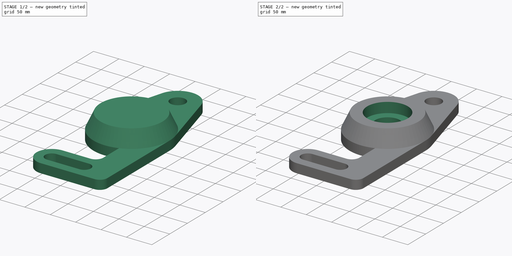
[diagram: build sequence overview — one tinted view per stage of 2, left to right]
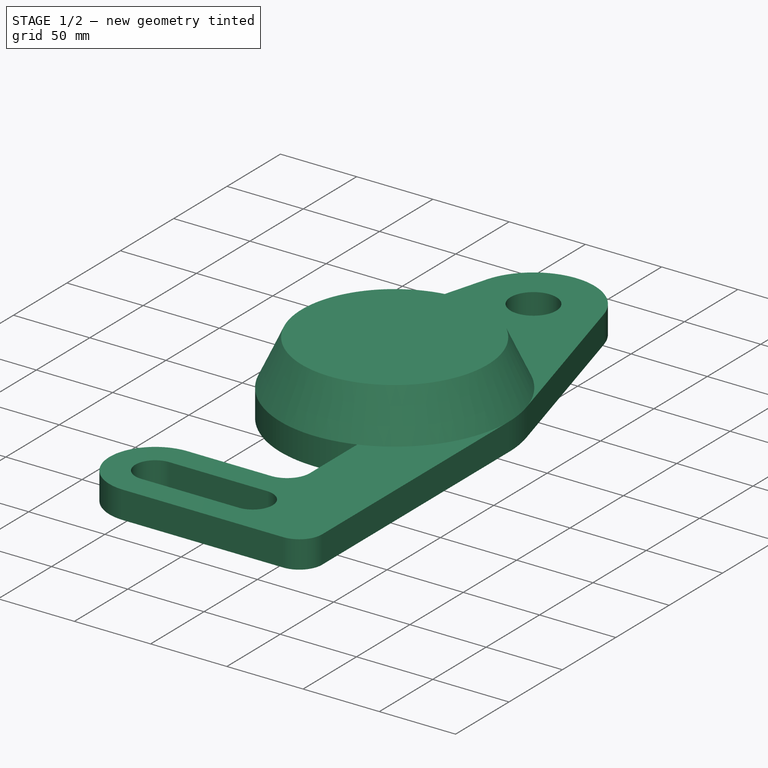
[diagram: stage 1 of 2 — iso view after this stage's code; geometry added in this stage tinted green]
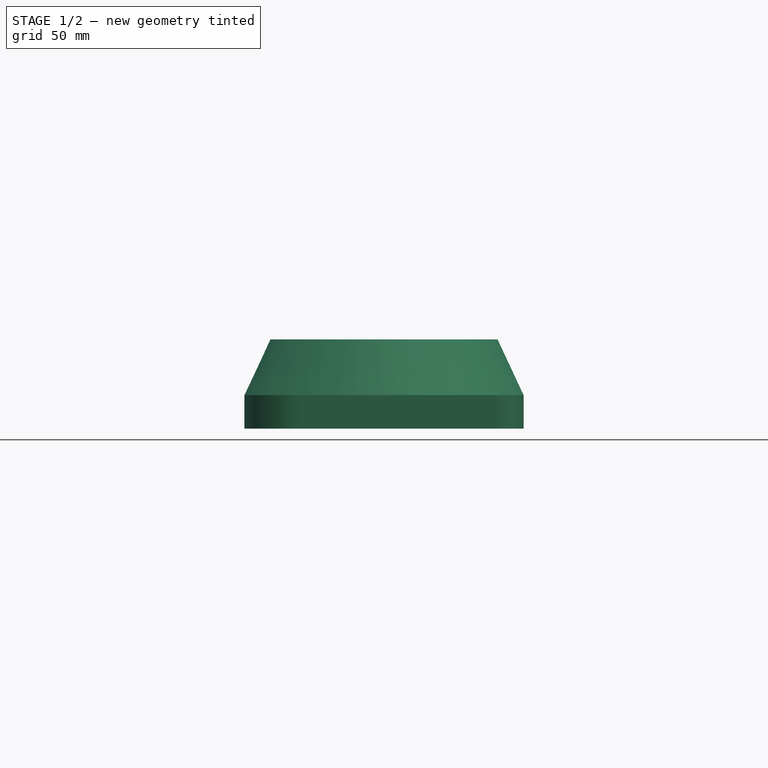
[diagram: stage 1 of 2 — front view after this stage's code; geometry added in this stage tinted green]
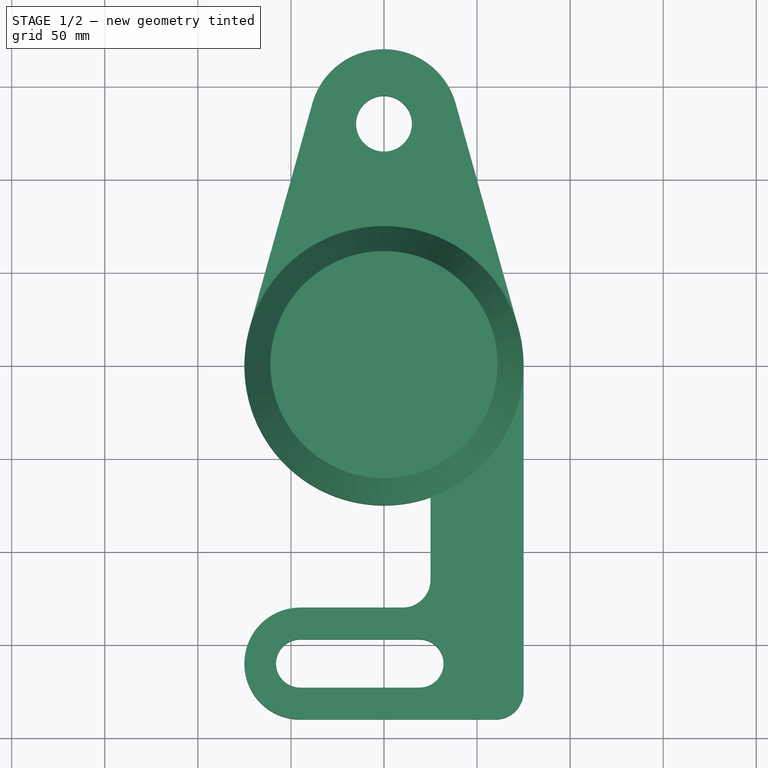
[diagram: stage 1 of 2 — top view after this stage's code; geometry added in this stage tinted green]
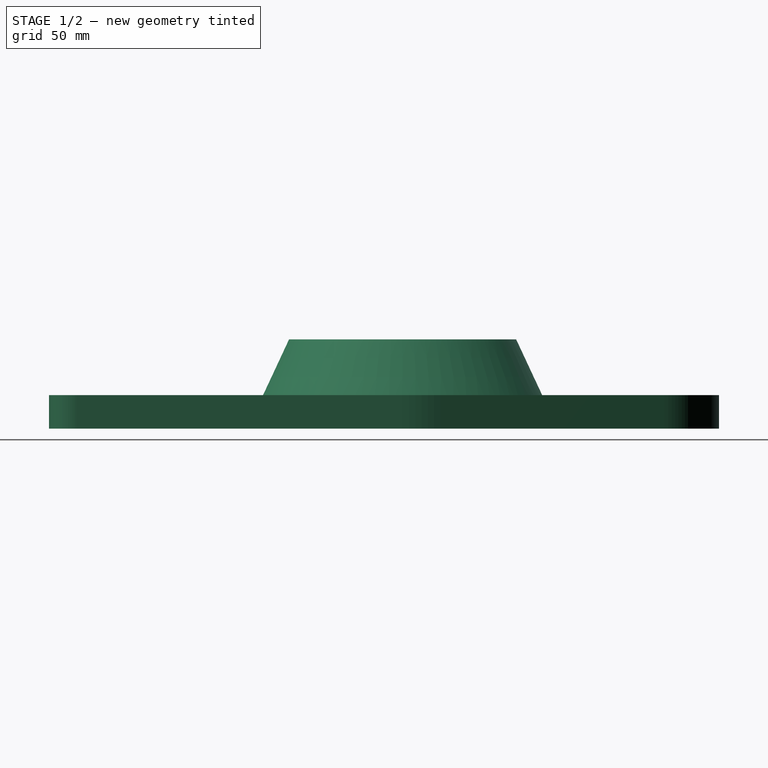
[diagram: stage 1 of 2 — right view after this stage's code; geometry added in this stage tinted green]
FCSTD DOCUMENT  (FreeCAD 0.22R36958 (Git))
Label: P - Link Practice Model
License: All rights reserved
LicenseURL: http://en.wikipedia.org/wiki/All_rights_reserved
objects: Sketcher::SketchObject×3, PartDesign::Pad×2, PartDesign::Pocket×2, PartDesign::Body×1
note: 12 computed .brp shape members not serialized (recipe doc carries the construction recipe); baked Part::Feature solids carry a one-line shape summary decoded from their .brp

FEATURE [Sketcher::SketchObject] Sketch
  AttachmentSupport = -> [XY_Plane]
  FullyConstrained = false
  MapMode = 5
  sketch-geometry (21):
    g0: Circle CenterX=0 CenterY=0 CenterZ=0 NormalX=0 NormalY=0 NormalZ=1 AngleXU=0 Radius=24
    g1: ArcOfCircle CenterX=0 CenterY=0 CenterZ=0 NormalX=0 NormalY=0 NormalZ=1 AngleXU=0 Radius=75 StartAngle=2.869 EndAngle=5.05223
    g2: LineSegment StartX=75 StartY=-6.66e-14 StartZ=0 EndX=75 EndY=-175 EndZ=0
    g3: LineSegment StartX=60 StartY=-190 StartZ=0 EndX=-45 EndY=-190 EndZ=0
    g4: LineSegment StartX=-45 StartY=-130 StartZ=0 EndX=10 EndY=-130 EndZ=0
    g5: LineSegment StartX=25 StartY=-115 StartZ=0 EndX=25 EndY=-70.7107 EndZ=0
    g6: ArcOfCircle CenterX=-45 CenterY=-160 CenterZ=0 NormalX=0 NormalY=0 NormalZ=1 AngleXU=0 Radius=30 StartAngle=1.5708 EndAngle=4.71239
    g7: ArcOfCircle CenterX=-45 CenterY=-160 CenterZ=0 NormalX=0 NormalY=0 NormalZ=1 AngleXU=0 Radius=13 StartAngle=1.5708 EndAngle=4.71239
    g8: ArcOfCircle CenterX=19 CenterY=-160 CenterZ=0 NormalX=0 NormalY=0 NormalZ=1 AngleXU=0 Radius=13 StartAngle=4.71239 EndAngle=7.85398
    g9: LineSegment StartX=-45 StartY=-147 StartZ=0 EndX=19 EndY=-147 EndZ=0
    g10: LineSegment StartX=-45 StartY=-173 StartZ=0 EndX=19 EndY=-173 EndZ=0
    g11: LineSegment StartX=-38.523 StartY=140.769 StartZ=0 EndX=-72.2307 EndY=20.1923 EndZ=0
    g12: LineSegment StartX=38.523 StartY=140.769 StartZ=0 EndX=72.2307 EndY=20.1923 EndZ=0
    g13: Circle CenterX=0 CenterY=130 CenterZ=0 NormalX=0 NormalY=0 NormalZ=1 AngleXU=0 Radius=15
    g14: ArcOfCircle CenterX=10 CenterY=-115 CenterZ=0 NormalX=0 NormalY=0 NormalZ=1 AngleXU=0 Radius=15 StartAngle=4.71239 EndAngle=6.28319
    g15: GeomPoint X=25 Y=-130 Z=0
    g16: ArcOfCircle CenterX=60 CenterY=-175 CenterZ=0 NormalX=0 NormalY=0 NormalZ=1 AngleXU=0 Radius=15 StartAngle=4.71239 EndAngle=6.28319
    g17: GeomPoint X=75 Y=-190 Z=0
    g18: ArcOfCircle CenterX=0 CenterY=130 CenterZ=0 NormalX=0 NormalY=0 NormalZ=1 AngleXU=0 Radius=40 StartAngle=0.272594 EndAngle=2.869
    g19: GeomPoint X=0 Y=170 Z=0
    g20: ArcOfCircle CenterX=0 CenterY=0 CenterZ=0 NormalX=0 NormalY=0 NormalZ=1 AngleXU=0 Radius=75 StartAngle=-9e-16 EndAngle=0.272594
  constraints (48):
    c: Coincident(g0,g-1)
    c: Coincident(g1,g0)
    c: Diameter(g0) = 48
    c: Diameter(g1) = 150
    c: Vertical(g2)
    c: Horizontal(g3)
    c: Horizontal(g9)
    c: Vertical(g7,g7)
    c: PointOnObject(g13,g-2)
    c: Diameter(g13) = 30
    c: Horizontal(g4)
    c: Vertical(g5)
    c: Distance(g2,g5) = 50
    c: Tangent(g9,g7) = 1.5708
    c: Tangent(g10,g7) = -1.5708
    c: Tangent(g10,g8) = -1.5708
    c: Tangent(g9,g8) = 1.5708
    c: Tangent(g6,g3) = 1.5708
    c: Tangent(g6,g4) = 1.5708
    c: DistanceY(g0,g13) = 130
    c: PointOnObject(g15,g4)
    c: PointOnObject(g15,g5)
    c: Tangent(g4,g14) = -1.5708
    c: Tangent(g5,g14) = -1.5708
    c: PointOnObject(g17,g2)
    c: PointOnObject(g17,g3)
    c: Tangent(g2,g16) = 1.5708
    c: Tangent(g3,g16) = 1.5708
    c: Radius(g14) = 15
    c: Radius(g18) = 40
    c: Coincident(g18,g13)
    c: Tangent(g18,g11) = -1.5708
    c: Tangent(g18,g12) = 1.5708
    c: Radius(g6) = 30
    c: Radius(g16) = 15
    c: Distance(g10,g9) = 26
    c: DistanceX(g7,g8) = 64
    c: Coincident(g7,g6)
    c: Distance(g6,g2) = 120
    c: PointOnObject(g19,g18)
    c: PointOnObject(g19,g-2)
    c: Distance(g-1,g3) = 190
    c: Coincident(g20,g12) = 1.5708
    c: Tangent(g1,g11) = -1.5708
    c: Equal(g1,g20)
    c: Coincident(g1,g5)
    c: Tangent(g20,g2) = 1.5708
    c: Coincident(g1,g20)
FEATURE [PartDesign::Pad] Pad
  Direction = (0,0,1)
  Length = 18
  Length2 = 10
  Profile = -> Sketch
  ReferenceAxis = -> Sketch [N_Axis]
  Suppressed = false
  Type = 0
FEATURE [Sketcher::SketchObject] Sketch001
  AttachmentSupport = -> [Pad]
  FullyConstrained = false
  MapMode = 5
  Placement = pos=(0,0,18) rot=(0,0,1;0rad)
  sketch-geometry (1):
    g0: Circle CenterX=0 CenterY=0 CenterZ=0 NormalX=0 NormalY=0 NormalZ=1 AngleXU=0 Radius=75
  constraints (1):
    c: Diameter(g0) = 150
FEATURE [PartDesign::Pad] Pad001
  BaseFeature = -> Pad
  Direction = (0,0,1)
  Length = 30
  Length2 = 10
  Profile = -> Sketch001
  ReferenceAxis = -> Sketch001 [N_Axis]
  Suppressed = false
  TaperAngle = -25
  Type = 0
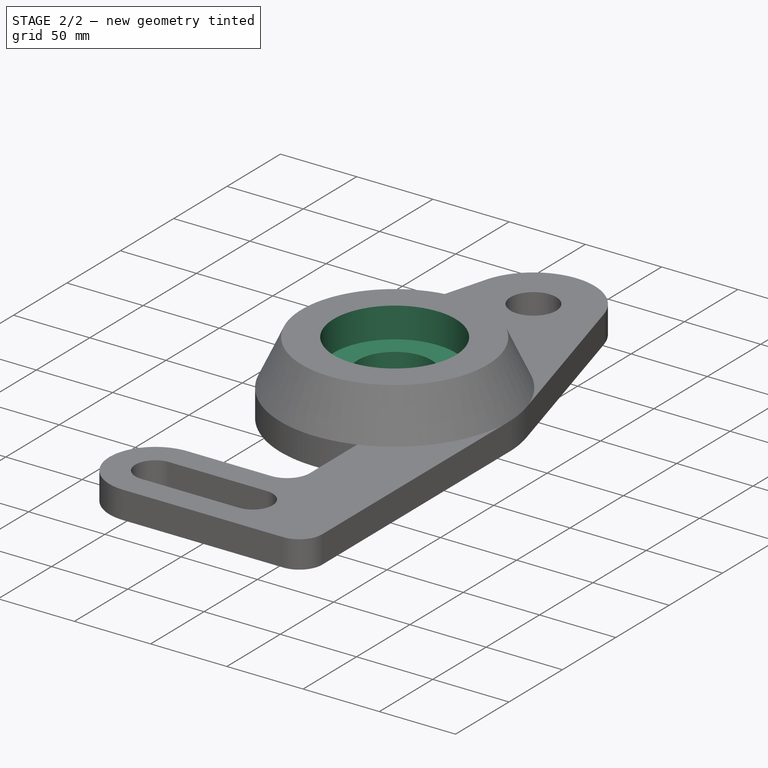
[diagram: stage 2 of 2 — iso view after this stage's code; geometry added in this stage tinted green]
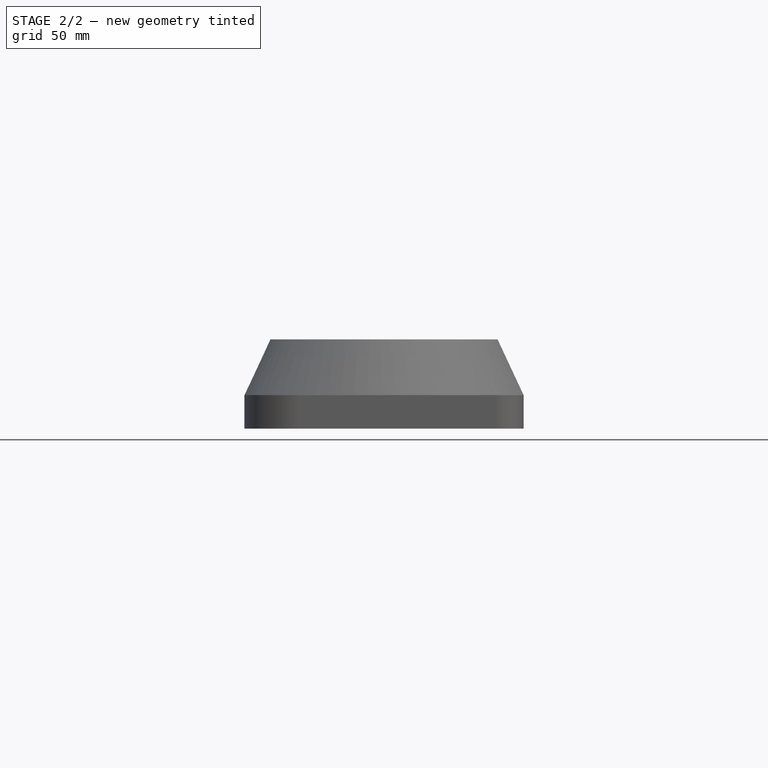
[diagram: stage 2 of 2 — front view after this stage's code; geometry added in this stage tinted green]
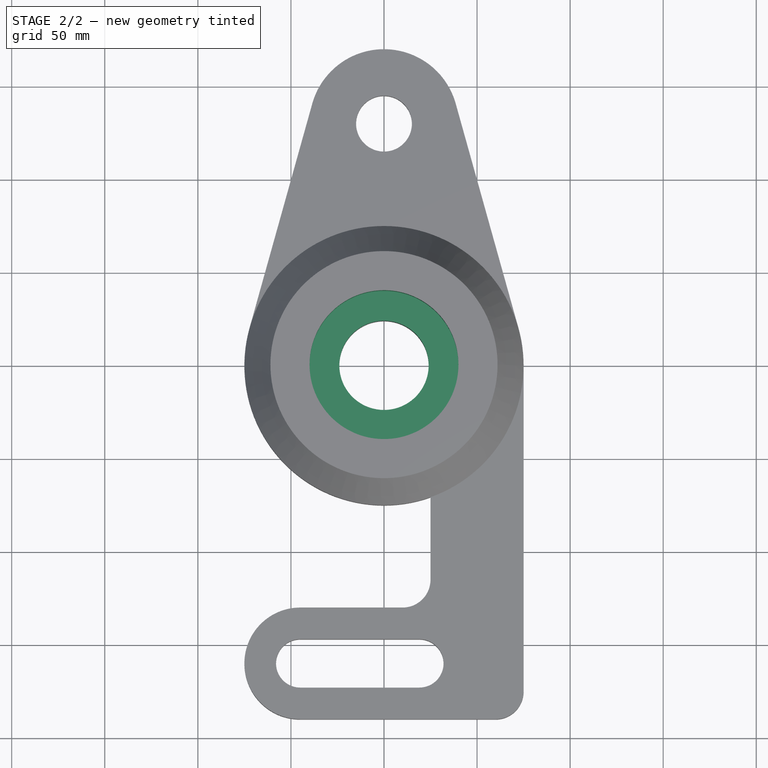
[diagram: stage 2 of 2 — top view after this stage's code; geometry added in this stage tinted green]
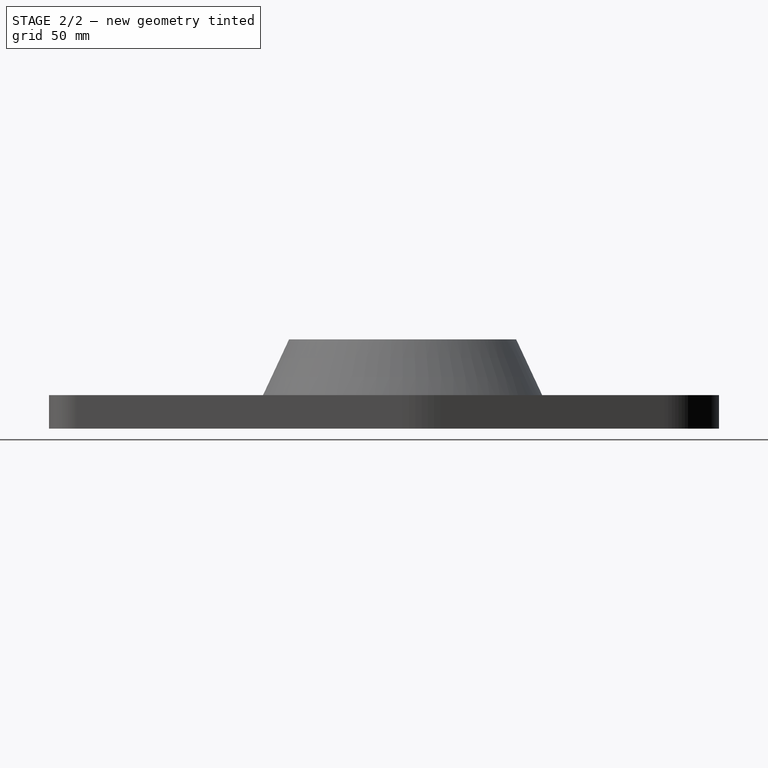
[diagram: stage 2 of 2 — right view after this stage's code; geometry added in this stage tinted green]
FEATURE [Sketcher::SketchObject] Sketch002
  AttachmentSupport = -> [Pad001]
  FullyConstrained = true
  MapMode = 5
  Placement = pos=(0,0,48) rot=(0,0,1;0rad)
  sketch-geometry (1):
    g0: Circle CenterX=0 CenterY=0 CenterZ=0 NormalX=0 NormalY=0 NormalZ=1 AngleXU=0 Radius=40
  constraints (2):
    c: Coincident(g0,g-1)
    c: Diameter(g0) = 80
FEATURE [PartDesign::Pocket] Pocket
  BaseFeature = -> Pad001
  Direction = (0,0,-1)
  Length = 20
  Length2 = 5
  Profile = -> Sketch002
  ReferenceAxis = -> Sketch002 [N_Axis]
  Suppressed = false
  Type = 0
FEATURE [PartDesign::Pocket] Pocket001
  BaseFeature = -> Pocket
  Direction = (0,0,1)
  Length = 5
  Length2 = 5
  Profile = -> Pocket [Face23]
  Suppressed = false
  Type = 1
FEATURE [PartDesign::Body] Body  label="P-Link Practice Model"
  Group = -> [Sketch,Pad,Sketch001,Pad001,Sketch002,Pocket,Pocket001]
  Origin = -> Origin
  Tip = -> Pocket001
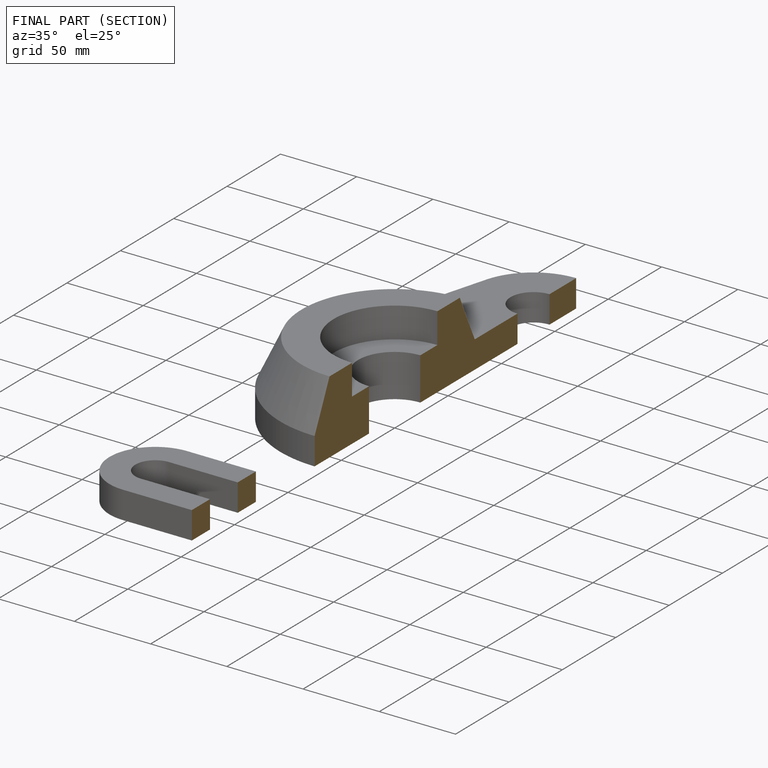
[diagram: finished part — half-section view (interior)]
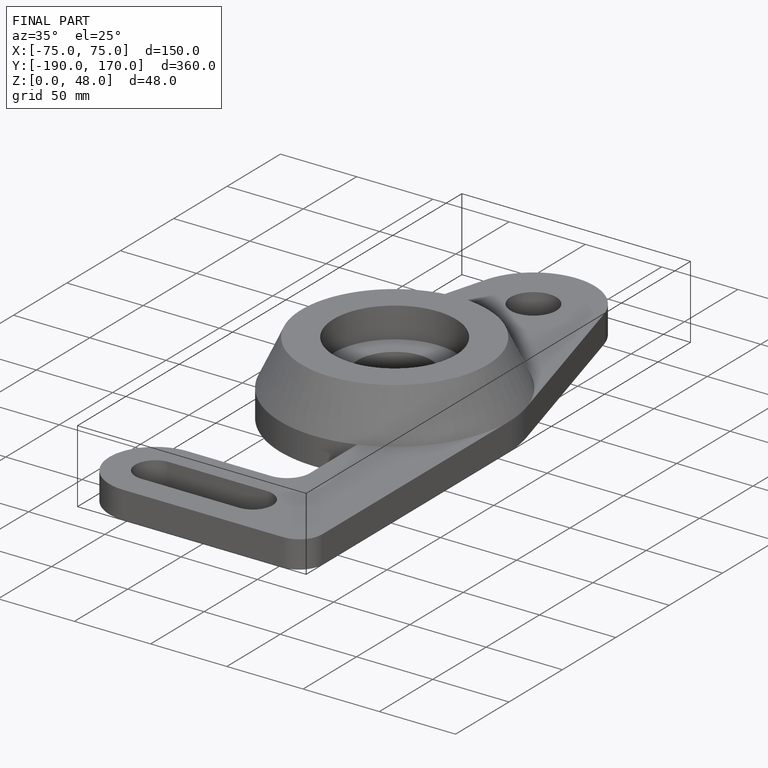
[diagram: finished part — iso view with bounding-box wireframe]
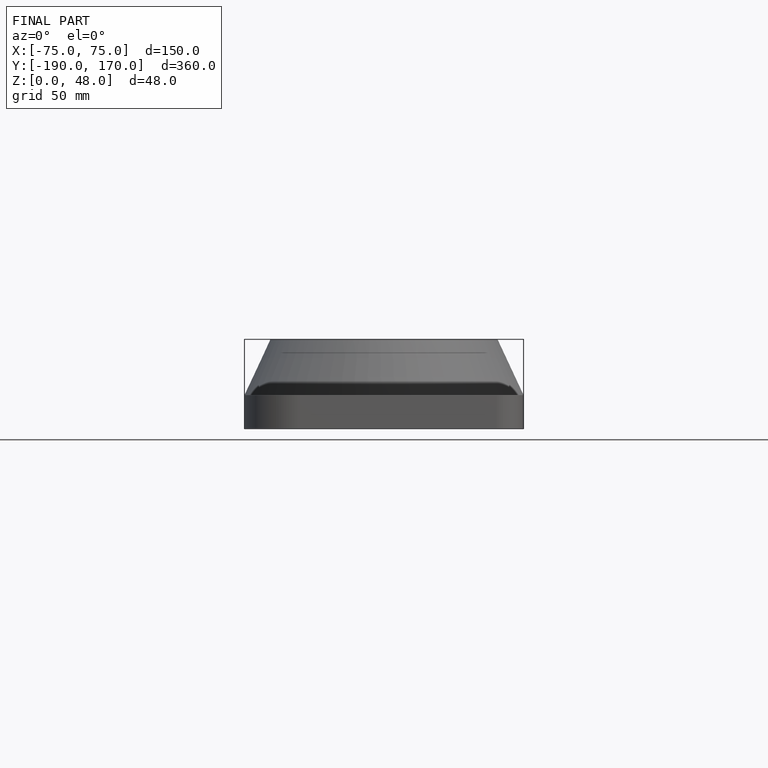
[diagram: finished part — front view with bounding-box wireframe]
